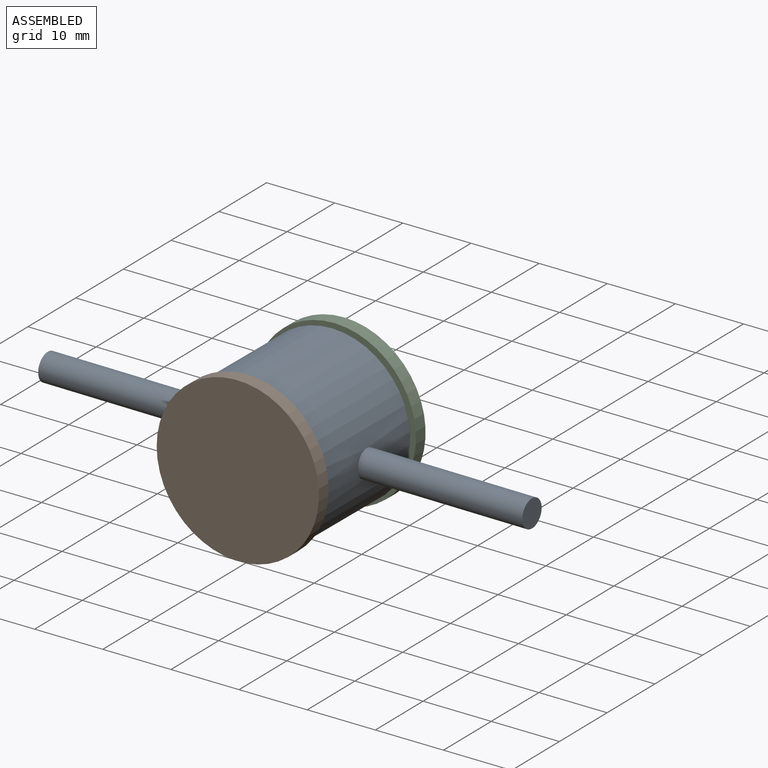
[diagram: assembled view]
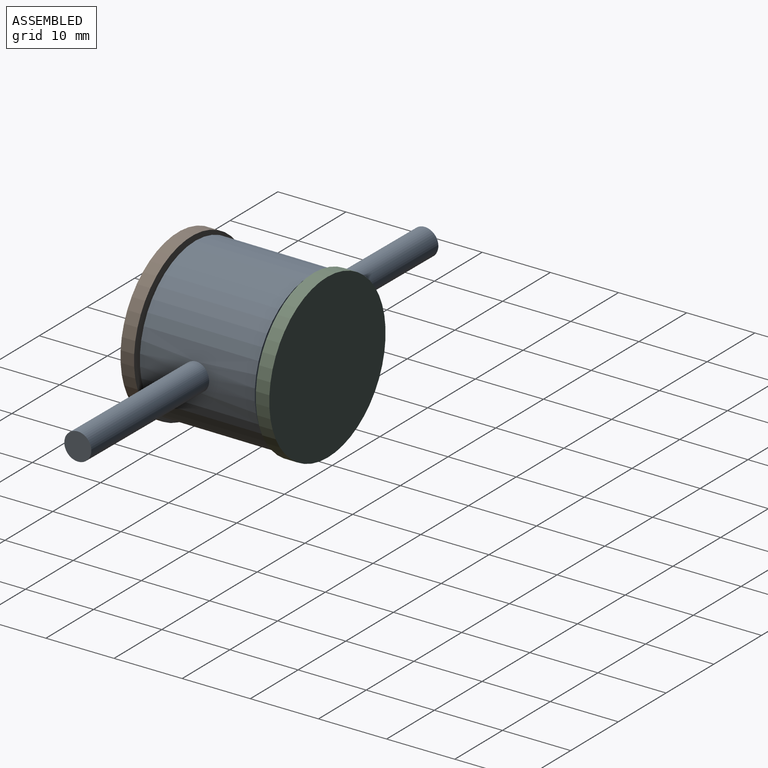
[diagram: assembled view, second angle]
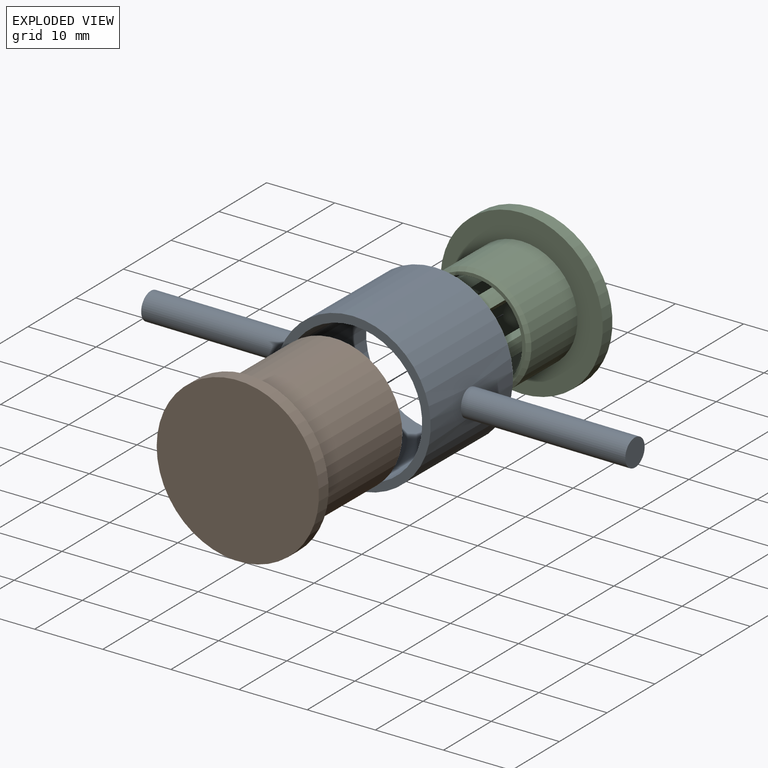
[diagram: exploded view]
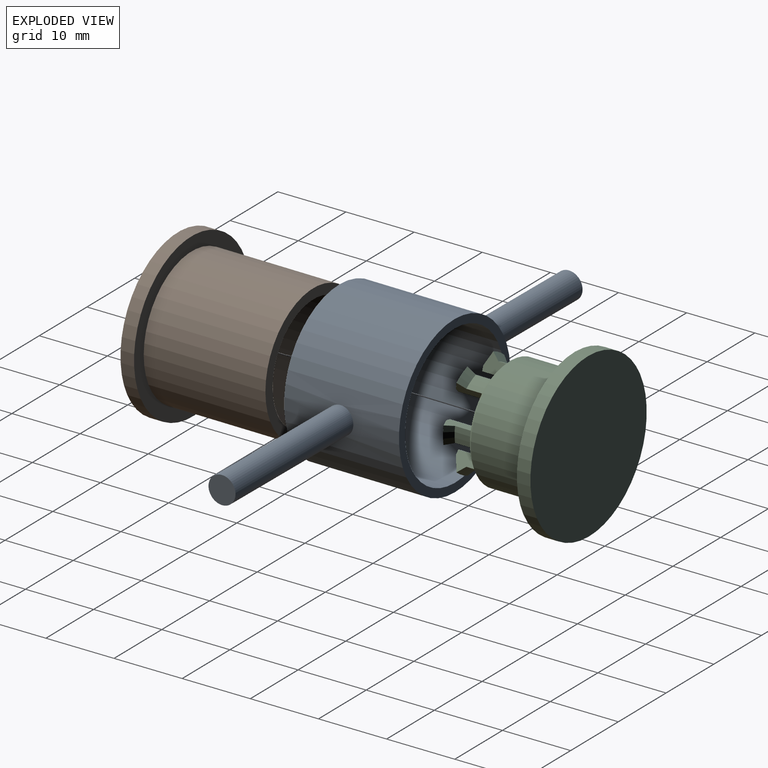
[diagram: exploded view, second angle]
ASSEMBLY  parts=3 mates=3
PART A: 8 faces, bbox 71.6x17x23 mm
  f0: cylinder r=10.25mm len=20.5mm, axis (0,1,0), area 1094.8mm2, adj f2,f3
  f1: cylinder r=11.5mm len=23mm, axis (0,1,0), area 1203.2mm2, adj f2,f3,f4,f5
  f2: plane 23x23mm, normal (0,-1,0), area 85.4mm2, adj f0,f1
  f3: plane 23x23mm, normal (0,1,0), area 85.4mm2, adj f0,f1
  f4: cylinder r=2mm len=24.48mm, axis (1,0,0), area 306.5mm2, adj f1,f6
  f5: cylinder r=2mm len=24.48mm, axis (1,0,0), area 306.5mm2, adj f1,f7
  f6: plane 4x4mm, normal (1,0,0), area 12.6mm2, adj f4
  f7: plane 4x4mm, normal (-1,0,0), area 12.6mm2, adj f5
PART B: 10 faces, bbox 24x20x24 mm
  f0: cylinder r=10mm len=20mm, axis (0,1,0), area 1131mm2, adj f1,f3
  f1: plane 20x20mm, normal (0,-1,0), area 87.2mm2, adj f0,f2
  f2: cylinder r=8.5mm len=17mm, axis (0,-1,0), area 587.5mm2, adj f1,f9
  f3: plane 24x24mm, normal (0,-1,0), area 138.2mm2, adj f0,f5
  f4: plane 24x24mm, normal (0,1,0), area 452.4mm2, adj f5
  f5: cylinder r=12mm len=24mm, axis (0,-1,0), area 150.8mm2, adj f3,f4
  f6: plane 17x17mm, normal (0,-1,0), area 227mm2, adj f7
  f7: cylinder r=8.5mm len=17mm, axis (0,-1,0), area 160.2mm2, adj f6,f8
  f8: cone r=8.5mm half-angle=45deg, axis (0,1,0), area 133.3mm2, adj f7,f9
  f9: cone r=6.5mm half-angle=45deg, axis (0,-1,0), area 133.3mm2, adj f2,f8
PART C: 74 faces, bbox 24x17x24 mm
  f0: plane 14.5x14.5mm, normal (0,-1,0), area 131.9mm2, adj f8,f9,f10,f11,f19,f20,f21,f22
  f1: plane 12.75x2.71mm, normal (-0.17,0,0.98), area 22.8mm2, adj f2,f4,f5,f6,f7,f8
  f2: cylinder r=4.75mm len=12.75mm, axis (0,1,0), area 21.1mm2, adj f1,f3,f5,f9
  f3: plane 12.75x2.71mm, normal (-0.17,0,-0.98), area 22.8mm2, adj f2,f4,f5,f6,f7,f11
  f4: cylinder r=6.5mm len=10.75mm, axis (0,1,0), area 24.4mm2, adj f1,f3,f6,f10
  f5: plane 1.91x0.82mm, normal (0,-1,0), area 1.3mm2, adj f1,f2,f3,f7
  f6: cone r=7.5mm half-angle=45deg, axis (0,-1,0), area 3.5mm2, adj f1,f3,f4,f7
  f7: cone r=5.5mm half-angle=63.4deg, axis (0,1,0), area 5.1mm2, adj f1,f3,f5,f6
  f8: cylinder r=0.25mm len=2.26mm, axis (-0.98,0,-0.17), area 0.8mm2, adj f0,f1,f9,f10
  f9: torus R=4.5mm, axis (0,-1,0), area 0.7mm2, adj f0,f2,f8,f11
  f10: torus R=6.75mm, axis (0,-1,0), area 1mm2, adj f0,f4,f8,f11
  f11: cylinder r=0.25mm len=2.26mm, axis (0.98,0,-0.17), area 0.8mm2, adj f0,f3,f9,f10
  f12: plane 12.75x2.58mm, normal (-0.94,0,0.34), area 22.8mm2, adj f13,f15,f16,f17,f18,f19
  f13: cylinder r=4.75mm len=12.75mm, axis (0,1,0), area 21.1mm2, adj f12,f14,f16,f20
  f14: plane 12.75x2.11mm, normal (0.77,0,-0.64), area 22.8mm2, adj f13,f15,f16,f17,f18,f22
  f15: cylinder r=6.5mm len=10.75mm, axis (0,1,0), area 24.4mm2, adj f12,f14,f17,f21
  f16: plane 1.91x1.53mm, normal (0,-1,0), area 1.3mm2, adj f12,f13,f14,f18
  f17: cone r=7.5mm half-angle=45deg, axis (0,-1,0), area 3.5mm2, adj f12,f14,f15,f18
  f18: cone r=5.5mm half-angle=63.4deg, axis (0,1,0), area 5.1mm2, adj f12,f14,f16,f17
  f19: cylinder r=0.25mm len=2.2mm, axis (-0.34,0,-0.94), area 0.8mm2, adj f0,f12,f20,f21
  f20: torus R=4.5mm, axis (0,-1,0), area 0.7mm2, adj f0,f13,f19,f22
  f21: torus R=6.75mm, axis (0,-1,0), area 1mm2, adj f0,f15,f19,f22
  f22: cylinder r=0.25mm len=1.89mm, axis (0.64,0,0.77), area 0.8mm2, adj f0,f14,f20,f21
  f23: plane 12.75x2.11mm, normal (-0.77,0,-0.64), area 22.8mm2, adj f24,f26,f27,f28,f29,f30
  f24: cylinder r=4.75mm len=12.75mm, axis (0,1,0), area 21.1mm2, adj f23,f25,f27,f31
  f25: plane 12.75x2.58mm, normal (0.94,0,0.34), area 22.8mm2, adj f24,f26,f27,f28,f29,f33
  f26: cylinder r=6.5mm len=10.75mm, axis (0,1,0), area 24.4mm2, adj f23,f25,f28,f32
  f27: plane 1.91x1.53mm, normal (0,-1,0), area 1.3mm2, adj f23,f24,f25,f29
  f28: cone r=7.5mm half-angle=45deg, axis (0,-1,0), area 3.5mm2, adj f23,f25,f26,f29
  f29: cone r=5.5mm half-angle=63.4deg, axis (0,1,0), area 5.1mm2, adj f23,f25,f27,f28
  f30: cylinder r=0.25mm len=1.89mm, axis (0.64,0,-0.77), area 0.8mm2, adj f0,f23,f31,f32
  f31: torus R=4.5mm, axis (0,-1,0), area 0.7mm2, adj f0,f24,f30,f33
  f32: torus R=6.75mm, axis (0,-1,0), area 1mm2, adj f0,f26,f30,f33
  f33: cylinder r=0.25mm len=2.2mm, axis (-0.34,0,0.94), area 0.8mm2, adj f0,f25,f31,f32
  f34: plane 12.75x2.71mm, normal (0.17,0,-0.98), area 22.8mm2, adj f35,f37,f38,f39,f40,f41
  f35: cylinder r=4.75mm len=12.75mm, axis (0,1,0), area 21.1mm2, adj f34,f36,f38,f42
  f36: plane 12.75x2.71mm, normal (0.17,0,0.98), area 22.8mm2, adj f35,f37,f38,f39,f40,f44
  f37: cylinder r=6.5mm len=10.75mm, axis (0,1,0), area 24.4mm2, adj f34,f36,f39,f43
  f38: plane 1.91x0.82mm, normal (0,-1,0), area 1.3mm2, adj f34,f35,f36,f40
  f39: cone r=7.5mm half-angle=45deg, axis (0,-1,0), area 3.5mm2, adj f34,f36,f37,f40
  f40: cone r=5.5mm half-angle=63.4deg, axis (0,1,0), area 5.1mm2, adj f34,f36,f38,f39
  f41: cylinder r=0.25mm len=2.26mm, axis (0.98,0,0.17), area 0.8mm2, adj f0,f34,f42,f43
  f42: torus R=4.5mm, axis (0,-1,0), area 0.7mm2, adj f0,f35,f41,f44
  f43: torus R=6.75mm, axis (0,-1,0), area 1mm2, adj f0,f37,f41,f44
  f44: cylinder r=0.25mm len=2.26mm, axis (-0.98,0,0.17), area 0.8mm2, adj f0,f36,f42,f43
  f45: plane 12.75x2.58mm, normal (0.94,0,-0.34), area 22.8mm2, adj f46,f48,f49,f50,f51,f52
  f46: cylinder r=4.75mm len=12.75mm, axis (0,1,0), area 21.1mm2, adj f45,f47,f49,f53
  f47: plane 12.75x2.11mm, normal (-0.77,0,0.64), area 22.8mm2, adj f46,f48,f49,f50,f51,f55
  f48: cylinder r=6.5mm len=10.75mm, axis (0,1,0), area 24.4mm2, adj f45,f47,f50,f54
  f49: plane 1.91x1.53mm, normal (0,-1,0), area 1.3mm2, adj f45,f46,f47,f51
  f50: cone r=7.5mm half-angle=45deg, axis (0,-1,0), area 3.5mm2, adj f45,f47,f48,f51
  f51: cone r=5.5mm half-angle=63.4deg, axis (0,1,0), area 5.1mm2, adj f45,f47,f49,f50
  f52: cylinder r=0.25mm len=2.2mm, axis (0.34,0,0.94), area 0.8mm2, adj f0,f45,f53,f54
  f53: torus R=4.5mm, axis (0,-1,0), area 0.7mm2, adj f0,f46,f52,f55
  f54: torus R=6.75mm, axis (0,-1,0), area 1mm2, adj f0,f48,f52,f55
  f55: cylinder r=0.25mm len=1.89mm, axis (-0.64,0,-0.77), area 0.8mm2, adj f0,f47,f53,f54
  f56: plane 12.75x2.11mm, normal (0.77,0,0.64), area 22.8mm2, adj f57,f59,f60,f61,f62,f63
  f57: cylinder r=4.75mm len=12.75mm, axis (0,1,0), area 21.1mm2, adj f56,f58,f60,f64
  f58: plane 12.75x2.58mm, normal (-0.94,0,-0.34), area 22.8mm2, adj f57,f59,f60,f61,f62,f66
  f59: cylinder r=6.5mm len=10.75mm, axis (0,1,0), area 24.4mm2, adj f56,f58,f61,f65
  f60: plane 1.91x1.53mm, normal (0,-1,0), area 1.3mm2, adj f56,f57,f58,f62
  f61: cone r=7.5mm half-angle=45deg, axis (0,-1,0), area 3.5mm2, adj f56,f58,f59,f62
  f62: cone r=5.5mm half-angle=63.4deg, axis (0,1,0), area 5.1mm2, adj f56,f58,f60,f61
  f63: cylinder r=0.25mm len=1.89mm, axis (-0.64,0,0.77), area 0.8mm2, adj f0,f56,f64,f65
  f64: torus R=4.5mm, axis (0,-1,0), area 0.7mm2, adj f0,f57,f63,f66
  f65: torus R=6.75mm, axis (0,-1,0), area 1mm2, adj f0,f59,f63,f66
  f66: cylinder r=0.25mm len=2.2mm, axis (0.34,0,-0.94), area 0.8mm2, adj f0,f58,f64,f65
  f67: cylinder r=7.25mm len=14.5mm, axis (0,1,0), area 364.4mm2, adj f0,f68
  f68: plane 15.5x15.5mm, normal (0,-1,0), area 23.6mm2, adj f67,f73
  f69: plane 24x24mm, normal (0,1,0), area 452.4mm2, adj f70
  f70: cylinder r=12mm len=24mm, axis (0,-1,0), area 150.8mm2, adj f69,f71
  f71: plane 24x24mm, normal (0,-1,0), area 238.6mm2, adj f70,f72
  f72: cylinder r=8.25mm len=16.5mm, axis (0,1,0), area 492.4mm2, adj f71,f73
  f73: cone r=7.75mm half-angle=45deg, axis (0,1,0), area 35.5mm2, adj f68,f72
PLACE A rot(axis=(0,0,-1),0.6deg) t=(0.6,7.24,-11.52)mm
PLACE B rot(axis=(0.71,0,0.71),179.6deg) t=(0.41,-10.26,-11.52)mm
PLACE C rot(axis=(0,0,-1),0.6deg) t=(0.61,7.74,-11.52)mm
MATE slider B.f5 <-> C.f70  axis (0.01,1,0) through (0.4,-11.26,-11.52)mm
MATE fastened C.f70 <-> B.f5  axis (-0.01,-1,0) through (0.61,7.74,-11.52)mm
MATE cylindrical A.f0 <-> B.f0  axis (0.01,1,0) through (0.51,-1.26,-11.52)mm
